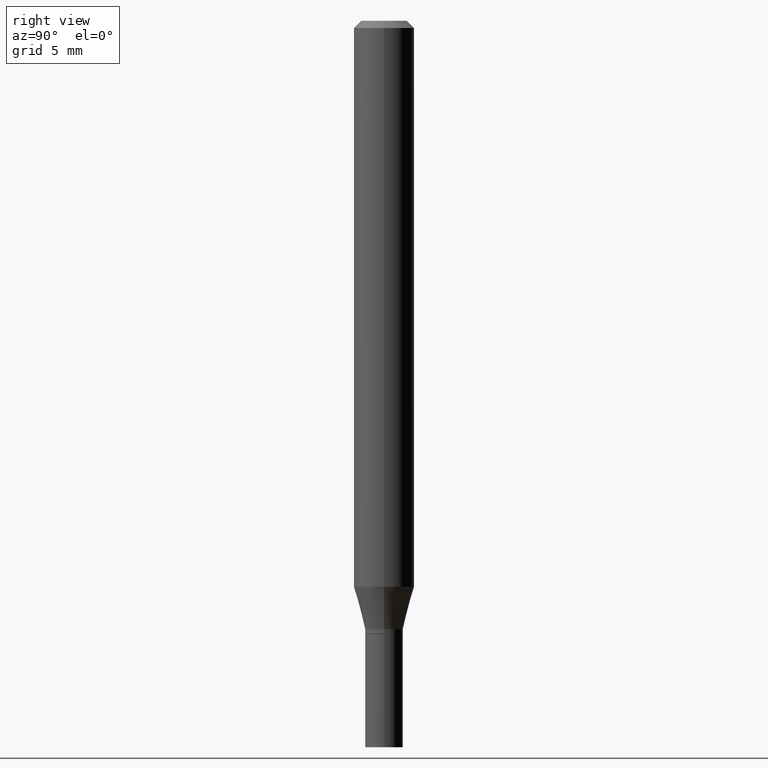
[diagram: clean part render]
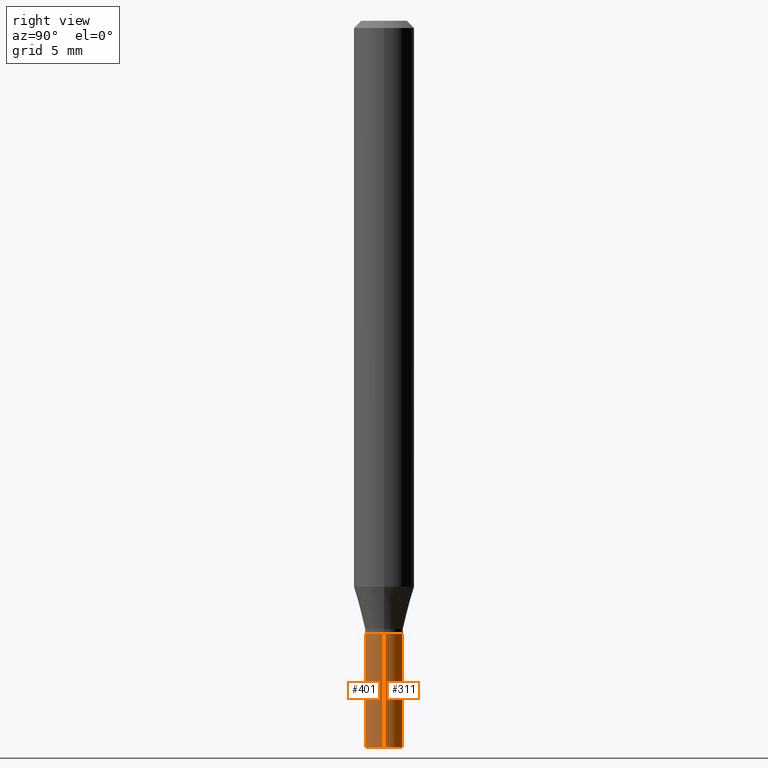
[diagram: same view with one multi-face feature highlighted, each face labeled with its STEP entity id]
A machine part, right view. The highlighted faces form ONE feature: a constant-radius fillet chain: 2 tangent blend faces with common blend radius 0.9906 mm. The faces share edges in the B-rep.
Their STEP definitions:
[1] entity #311 (Cylinder):
#26 = VECTOR ( 'NONE', #287, 39.37007874015748143 ) ;
#27 = FACE_OUTER_BOUND ( 'NONE', #316, .T. ) ;
#60 = CARTESIAN_POINT ( 'NONE',  ( 0.000000000000000000, 0.000000000000000000, 0.000000000000000000 ) ) ;
#70 = CARTESIAN_POINT ( 'NONE',  ( 0.03899999999999999994, -5.509557552694482989E-15, -1.500000000000000222 ) ) ;
#100 = VERTEX_POINT ( 'NONE', #176 ) ;
#106 = DIRECTION ( 'NONE',  ( -2.445468806185136597E-29, 3.491481338843145583E-15, 1.000000000000000000 ) ) ;
#109 = DIRECTION ( 'NONE',  ( -2.445468806185136597E-29, 3.491481338843145583E-15, 1.000000000000000000 ) ) ;
#127 = VERTEX_POINT ( 'NONE', #394 ) ;
#141 = DIRECTION ( 'NONE',  ( 1.000000000000000000, -6.982962677686258033E-15, 0.000000000000000000 ) ) ;
#158 = VECTOR ( 'NONE', #356, 39.37007874015748143 ) ;
#163 = ORIENTED_EDGE ( 'NONE', *, *, #445, .F. ) ;
#170 = CIRCLE ( 'NONE', #369, 0.03899999999999999994 ) ;
#172 = CARTESIAN_POINT ( 'NONE',  ( 0.03899999999999999994, -4.692550919405186186E-15, -1.266000000000000014 ) ) ;
#176 = CARTESIAN_POINT ( 'NONE',  ( -0.03899999999999999994, -4.551607024673631246E-15, -1.500000000000000222 ) ) ;
#177 = LINE ( 'NONE', #325, #26 ) ;
#185 = CARTESIAN_POINT ( 'NONE',  ( 3.095963508630383106E-29, -4.420215374975422163E-15, -1.266000000000000014 ) ) ;
#196 = EDGE_CURVE ( 'NONE', #418, #127, #170, .T. ) ;
#201 = DIRECTION ( 'NONE',  ( -2.445468806185136597E-29, 3.491481338843145583E-15, 1.000000000000000000 ) ) ;
#208 = EDGE_CURVE ( 'NONE', #100, #127, #375, .T. ) ;
#213 = CARTESIAN_POINT ( 'NONE',  ( 3.668203209277704895E-29, -5.237222008264718177E-15, -1.500000000000000222 ) ) ;
#232 = ORIENTED_EDGE ( 'NONE', *, *, #208, .T. ) ;
#233 = CIRCLE ( 'NONE', #458, 0.03899999999999999994 ) ;
#248 = VERTEX_POINT ( 'NONE', #70 ) ;
#249 = CARTESIAN_POINT ( 'NONE',  ( -0.03899999999999999994, 2.771116669464390721E-16, -1.918384685199413078E-30 ) ) ;
#254 = DIRECTION ( 'NONE',  ( 1.000000000000000000, -6.982962677686265922E-15, 4.876176775795935793E-29 ) ) ;
#259 = DIRECTION ( 'NONE',  ( 1.000000000000000000, -6.982962677686258033E-15, 0.000000000000000000 ) ) ;
#287 = DIRECTION ( 'NONE',  ( -2.445468806185136877E-29, 3.491481338843145188E-15, 1.000000000000000000 ) ) ;
#311 = ADVANCED_FACE ( 'NONE', ( #27 ), #434, .T. ) ;
#316 = EDGE_LOOP ( 'NONE', ( #350, #232, #453, #163 ) ) ;
#325 = CARTESIAN_POINT ( 'NONE',  ( 0.03899999999999999994, -2.723355444297643682E-16, 1.901708942560414931E-30 ) ) ;
#350 = ORIENTED_EDGE ( 'NONE', *, *, #421, .T. ) ;
#356 = DIRECTION ( 'NONE',  ( -2.445468806185136877E-29, 3.491481338843145188E-15, 1.000000000000000000 ) ) ;
#369 = AXIS2_PLACEMENT_3D ( 'NONE', #185, #109, #259 ) ;
#375 = LINE ( 'NONE', #249, #158 ) ;
#394 = CARTESIAN_POINT ( 'NONE',  ( -0.03899999999999999994, -4.551607024673631246E-15, -1.266000000000000014 ) ) ;
#418 = VERTEX_POINT ( 'NONE', #172 ) ;
#421 = EDGE_CURVE ( 'NONE', #248, #100, #233, .T. ) ;
#434 = CYLINDRICAL_SURFACE ( 'NONE', #436, 0.03899999999999999994 ) ;
#436 = AXIS2_PLACEMENT_3D ( 'NONE', #60, #106, #254 ) ;
#445 = EDGE_CURVE ( 'NONE', #248, #418, #177, .T. ) ;
#453 = ORIENTED_EDGE ( 'NONE', *, *, #196, .F. ) ;
#458 = AXIS2_PLACEMENT_3D ( 'NONE', #213, #201, #141 ) ;
[2] entity #401 (Cylinder):
#1 = ORIENTED_EDGE ( 'NONE', *, *, #349, .T. ) ;
#26 = VECTOR ( 'NONE', #287, 39.37007874015748143 ) ;
#70 = CARTESIAN_POINT ( 'NONE',  ( 0.03899999999999999994, -5.509557552694482989E-15, -1.500000000000000222 ) ) ;
#83 = DIRECTION ( 'NONE',  ( 1.000000000000000000, -6.982962677686258033E-15, 0.000000000000000000 ) ) ;
#100 = VERTEX_POINT ( 'NONE', #176 ) ;
#105 = CIRCLE ( 'NONE', #378, 0.03899999999999999994 ) ;
#122 = ORIENTED_EDGE ( 'NONE', *, *, #237, .F. ) ;
#127 = VERTEX_POINT ( 'NONE', #394 ) ;
#135 = ORIENTED_EDGE ( 'NONE', *, *, #208, .F. ) ;
#153 = FACE_OUTER_BOUND ( 'NONE', #180, .T. ) ;
#158 = VECTOR ( 'NONE', #356, 39.37007874015748143 ) ;
#172 = CARTESIAN_POINT ( 'NONE',  ( 0.03899999999999999994, -4.692550919405186186E-15, -1.266000000000000014 ) ) ;
#176 = CARTESIAN_POINT ( 'NONE',  ( -0.03899999999999999994, -4.551607024673631246E-15, -1.500000000000000222 ) ) ;
#177 = LINE ( 'NONE', #325, #26 ) ;
#180 = EDGE_LOOP ( 'NONE', ( #135, #1, #274, #122 ) ) ;
#208 = EDGE_CURVE ( 'NONE', #100, #127, #375, .T. ) ;
#209 = DIRECTION ( 'NONE',  ( 1.000000000000000000, -6.982962677686258033E-15, 0.000000000000000000 ) ) ;
#227 = DIRECTION ( 'NONE',  ( -2.445468806185136597E-29, 3.491481338843145583E-15, 1.000000000000000000 ) ) ;
#237 = EDGE_CURVE ( 'NONE', #127, #418, #441, .T. ) ;
#248 = VERTEX_POINT ( 'NONE', #70 ) ;
#249 = CARTESIAN_POINT ( 'NONE',  ( -0.03899999999999999994, 2.771116669464390721E-16, -1.918384685199413078E-30 ) ) ;
#274 = ORIENTED_EDGE ( 'NONE', *, *, #445, .T. ) ;
#281 = CARTESIAN_POINT ( 'NONE',  ( 3.095963508630383106E-29, -4.420215374975422163E-15, -1.266000000000000014 ) ) ;
#287 = DIRECTION ( 'NONE',  ( -2.445468806185136877E-29, 3.491481338843145188E-15, 1.000000000000000000 ) ) ;
#303 = CYLINDRICAL_SURFACE ( 'NONE', #413, 0.03899999999999999994 ) ;
#306 = DIRECTION ( 'NONE',  ( -2.445468806185136597E-29, 3.491481338843145583E-15, 1.000000000000000000 ) ) ;
#308 = CARTESIAN_POINT ( 'NONE',  ( 3.668203209277704895E-29, -5.237222008264718177E-15, -1.500000000000000222 ) ) ;
#325 = CARTESIAN_POINT ( 'NONE',  ( 0.03899999999999999994, -2.723355444297643682E-16, 1.901708942560414931E-30 ) ) ;
#336 = AXIS2_PLACEMENT_3D ( 'NONE', #281, #393, #209 ) ;
#349 = EDGE_CURVE ( 'NONE', #100, #248, #105, .T. ) ;
#356 = DIRECTION ( 'NONE',  ( -2.445468806185136877E-29, 3.491481338843145188E-15, 1.000000000000000000 ) ) ;
#372 = DIRECTION ( 'NONE',  ( 1.000000000000000000, -6.982962677686265922E-15, 4.876176775795935793E-29 ) ) ;
#375 = LINE ( 'NONE', #249, #158 ) ;
#378 = AXIS2_PLACEMENT_3D ( 'NONE', #308, #306, #83 ) ;
#393 = DIRECTION ( 'NONE',  ( -2.445468806185136597E-29, 3.491481338843145583E-15, 1.000000000000000000 ) ) ;
#394 = CARTESIAN_POINT ( 'NONE',  ( -0.03899999999999999994, -4.551607024673631246E-15, -1.266000000000000014 ) ) ;
#401 = ADVANCED_FACE ( 'NONE', ( #153 ), #303, .T. ) ;
#413 = AXIS2_PLACEMENT_3D ( 'NONE', #443, #227, #372 ) ;
#418 = VERTEX_POINT ( 'NONE', #172 ) ;
#441 = CIRCLE ( 'NONE', #336, 0.03899999999999999994 ) ;
#443 = CARTESIAN_POINT ( 'NONE',  ( 0.000000000000000000, 0.000000000000000000, 0.000000000000000000 ) ) ;
#445 = EDGE_CURVE ( 'NONE', #248, #418, #177, .T. ) ;